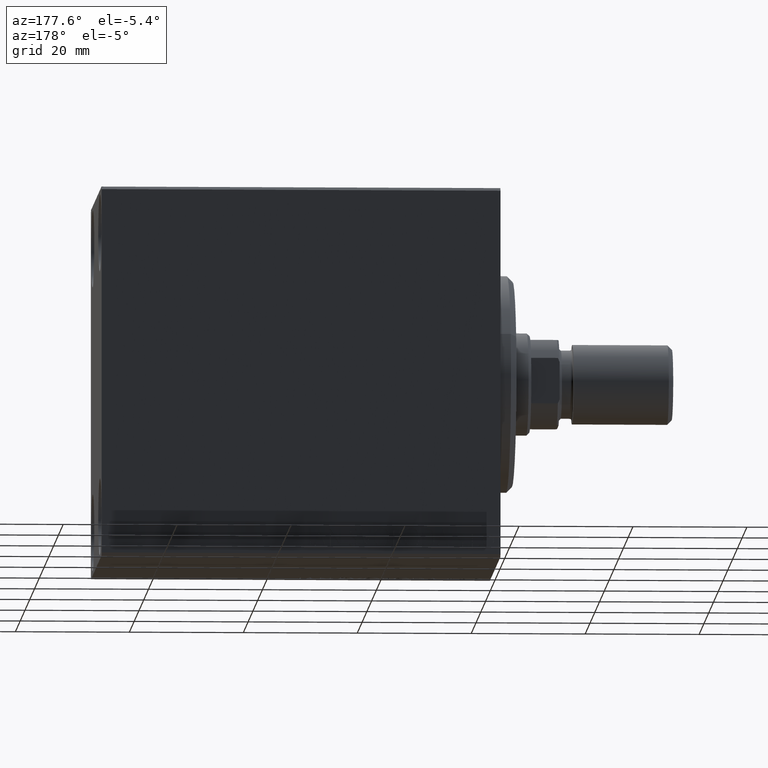
[diagram: clean part render]
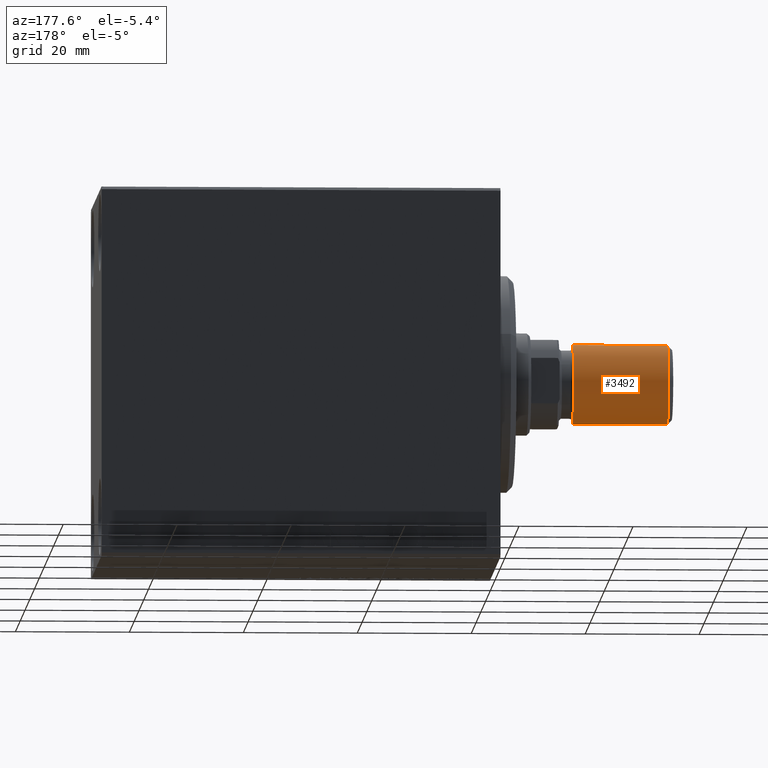
[diagram: same view with one face highlighted and labeled with its STEP entity id]
A machine part, auxiliary view. The second image highlights one B-rep face of the part: STEP entity #3492.
In plain terms, the highlighted cylindrical surface (partial cylindrical patch) has radius 7 mm, axis along (-1, -0, 0).
Its self-contained STEP definition (entity closure, byte-faithful):
#1283 = EDGE_CURVE ( 'NONE', #23537, #23968, #22079, .T. ) ;
#1823 = ORIENTED_EDGE ( 'NONE', *, *, #39328, .T. ) ;
#2543 = LINE ( 'NONE', #3594, #17493 ) ;
#2890 = CARTESIAN_POINT ( 'NONE',  ( 7.000000000000000000, 8.572527594031473190E-16, 17.50000000000000000 ) ) ;
#3026 = EDGE_LOOP ( 'NONE', ( #31898, #27477, #1823, #22561 ) ) ;
#3132 = CARTESIAN_POINT ( 'NONE',  ( 0.000000000000000000, 0.000000000000000000, 0.7999999999999986011 ) ) ;
#3223 = CARTESIAN_POINT ( 'NONE',  ( 0.000000000000000000, 0.000000000000000000, 17.50000000000000000 ) ) ;
#3492 = ADVANCED_FACE ( 'NONE', ( #28071 ), #24699, .T. ) ;
#3594 = CARTESIAN_POINT ( 'NONE',  ( 7.000000000000000000, 8.572527594031473190E-16, 17.50000000000000000 ) ) ;
#5677 = LINE ( 'NONE', #12636, #17396 ) ;
#5933 = DIRECTION ( 'NONE',  ( 1.000000000000000000, 0.000000000000000000, 0.000000000000000000 ) ) ;
#6506 = DIRECTION ( 'NONE',  ( -0.000000000000000000, -0.000000000000000000, 1.000000000000000000 ) ) ;
#7612 = DIRECTION ( 'NONE',  ( -0.000000000000000000, -0.000000000000000000, -1.000000000000000000 ) ) ;
#9670 = CIRCLE ( 'NONE', #33367, 7.000000000000000000 ) ;
#12636 = CARTESIAN_POINT ( 'NONE',  ( -7.000000000000000000, 0.000000000000000000, 17.50000000000000000 ) ) ;
#15805 = DIRECTION ( 'NONE',  ( -0.000000000000000000, -0.000000000000000000, -1.000000000000000000 ) ) ;
#17065 = AXIS2_PLACEMENT_3D ( 'NONE', #41763, #7612, #35014 ) ;
#17396 = VECTOR ( 'NONE', #15805, 1000.000000000000000 ) ;
#17493 = VECTOR ( 'NONE', #31214, 1000.000000000000000 ) ;
#22079 = CIRCLE ( 'NONE', #35701, 7.000000000000000000 ) ;
#22561 = ORIENTED_EDGE ( 'NONE', *, *, #26324, .F. ) ;
#23537 = VERTEX_POINT ( 'NONE', #2890 ) ;
#23968 = VERTEX_POINT ( 'NONE', #24797 ) ;
#24699 = CYLINDRICAL_SURFACE ( 'NONE', #17065, 7.000000000000000000 ) ;
#24797 = CARTESIAN_POINT ( 'NONE',  ( -7.000000000000000000, 0.000000000000000000, 17.50000000000000000 ) ) ;
#25389 = VERTEX_POINT ( 'NONE', #38174 ) ;
#26324 = EDGE_CURVE ( 'NONE', #23968, #25389, #5677, .T. ) ;
#27477 = ORIENTED_EDGE ( 'NONE', *, *, #30475, .T. ) ;
#28071 = FACE_OUTER_BOUND ( 'NONE', #3026, .T. ) ;
#29457 = DIRECTION ( 'NONE',  ( 1.000000000000000000, 0.000000000000000000, 0.000000000000000000 ) ) ;
#29746 = DIRECTION ( 'NONE',  ( 0.000000000000000000, 0.000000000000000000, 1.000000000000000000 ) ) ;
#30475 = EDGE_CURVE ( 'NONE', #23537, #43327, #2543, .T. ) ;
#31214 = DIRECTION ( 'NONE',  ( -0.000000000000000000, -0.000000000000000000, -1.000000000000000000 ) ) ;
#31898 = ORIENTED_EDGE ( 'NONE', *, *, #1283, .F. ) ;
#33367 = AXIS2_PLACEMENT_3D ( 'NONE', #3132, #6506, #29457 ) ;
#35014 = DIRECTION ( 'NONE',  ( -1.000000000000000000, 0.000000000000000000, 0.000000000000000000 ) ) ;
#35701 = AXIS2_PLACEMENT_3D ( 'NONE', #3223, #29746, #5933 ) ;
#35927 = CARTESIAN_POINT ( 'NONE',  ( 7.000000000000000000, 8.572527594031473190E-16, 0.7999999999999986011 ) ) ;
#38174 = CARTESIAN_POINT ( 'NONE',  ( -7.000000000000000000, 0.000000000000000000, 0.7999999999999986011 ) ) ;
#39328 = EDGE_CURVE ( 'NONE', #43327, #25389, #9670, .T. ) ;
#41763 = CARTESIAN_POINT ( 'NONE',  ( 0.000000000000000000, 0.000000000000000000, 17.50000000000000000 ) ) ;
#43327 = VERTEX_POINT ( 'NONE', #35927 ) ;